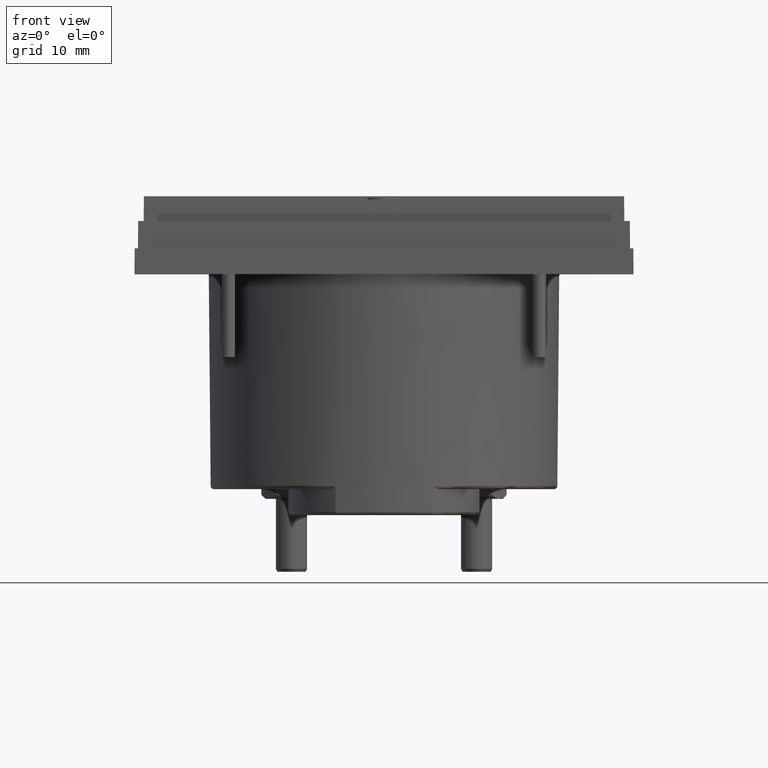
[diagram: clean part render]
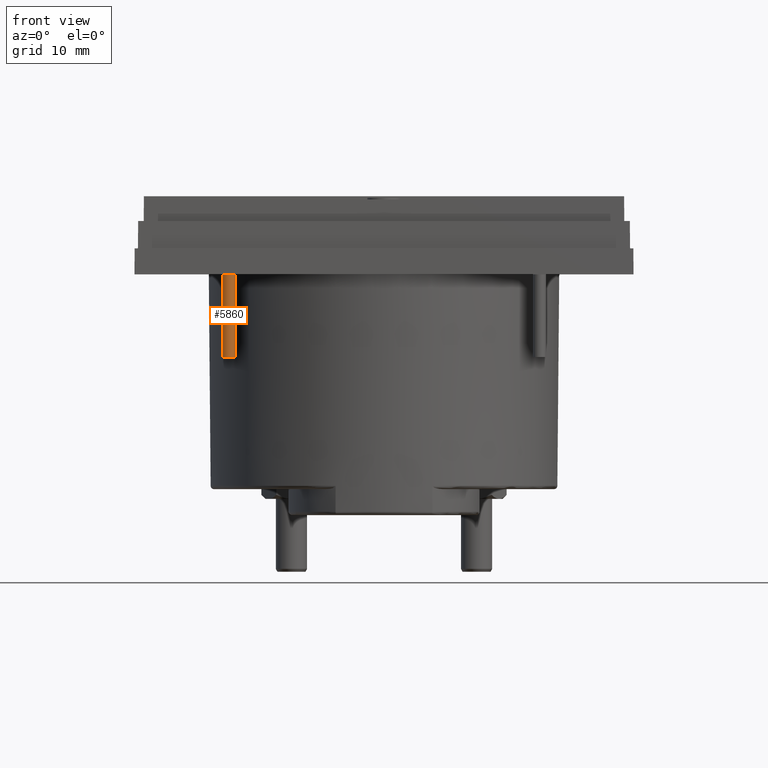
[diagram: same view with one face highlighted and labeled with its STEP entity id]
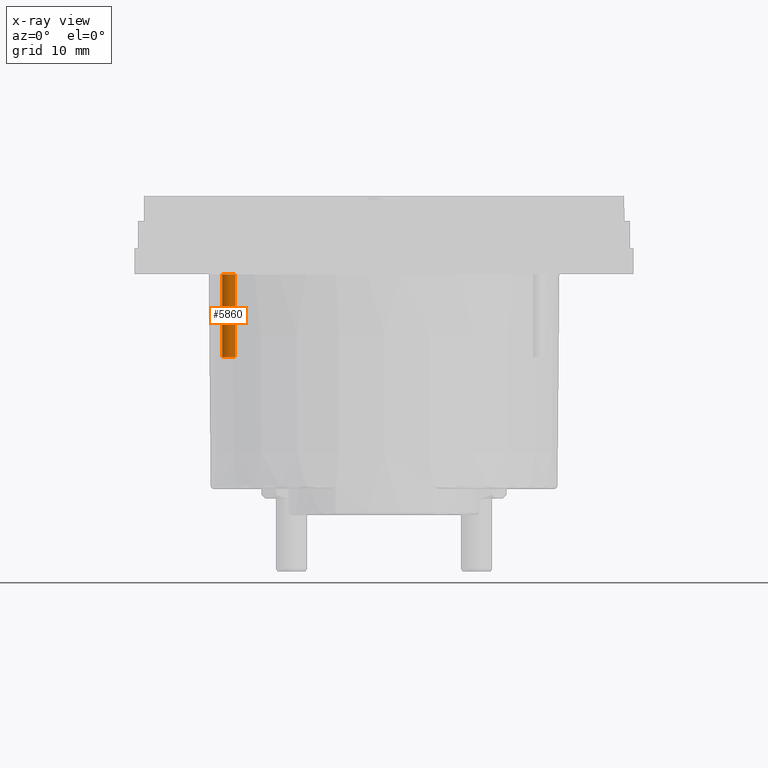
[diagram: x-ray of the same camera — body ghosted, the highlighted face saturated]
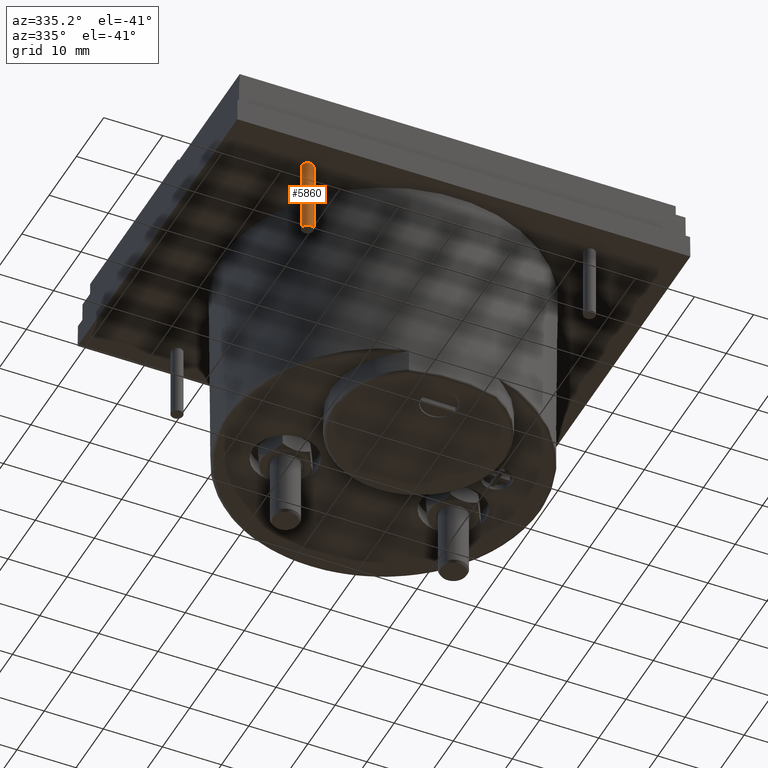
[diagram: same view with one face highlighted and labeled with its STEP entity id]
A machine part, front view. The second image highlights one B-rep face of the part: STEP entity #5860.
The next image is the same camera in x-ray: the body ghosted, the highlighted face saturated — about 0% of this face is hidden behind the body in this view.
A second angle (auxiliary view) of the same face is appended — the face is thin or edge-on in the first view.
In plain terms, the highlighted cylindrical surface (edge-blend (fillet) strip) has radius 1 mm, axis along (0, 0, -1).
Its self-contained STEP definition (entity closure, byte-faithful):
#148 = CARTESIAN_POINT ( 'NONE',  ( -0.9400000000000000577, -0.1240944881889748247, -0.2732283464566929720 ) ) ;
#357 = EDGE_CURVE ( 'NONE', #1297, #4642, #4950, .T. ) ;
#513 = VERTEX_POINT ( 'NONE', #2764 ) ;
#711 = AXIS2_PLACEMENT_3D ( 'NONE', #3339, #955, #4629 ) ;
#790 = ORIENTED_EDGE ( 'NONE', *, *, #357, .T. ) ;
#798 = DIRECTION ( 'NONE',  ( -1.000000000000000000, 0.000000000000000000, 0.000000000000000000 ) ) ;
#902 = EDGE_CURVE ( 'NONE', #513, #4642, #1481, .T. ) ;
#955 = DIRECTION ( 'NONE',  ( -0.000000000000000000, -0.000000000000000000, 1.000000000000000000 ) ) ;
#1150 = ORIENTED_EDGE ( 'NONE', *, *, #1502, .F. ) ;
#1297 = VERTEX_POINT ( 'NONE', #3282 ) ;
#1345 = AXIS2_PLACEMENT_3D ( 'NONE', #148, #4768, #2001 ) ;
#1399 = VECTOR ( 'NONE', #3318, 39.37007874015748143 ) ;
#1438 = CARTESIAN_POINT ( 'NONE',  ( -0.9793700787401575791, -0.1240944881889748247, -0.2732283464566929720 ) ) ;
#1481 = LINE ( 'NONE', #3406, #1399 ) ;
#1502 = EDGE_CURVE ( 'NONE', #2990, #513, #3143, .T. ) ;
#1912 = CYLINDRICAL_SURFACE ( 'NONE', #1345, 0.03937007874015751446 ) ;
#2001 = DIRECTION ( 'NONE',  ( -1.000000000000000000, 0.000000000000000000, 0.000000000000000000 ) ) ;
#2387 = VECTOR ( 'NONE', #4623, 39.37007874015748143 ) ;
#2649 = DIRECTION ( 'NONE',  ( -0.000000000000000000, -0.000000000000000000, 1.000000000000000000 ) ) ;
#2738 = CARTESIAN_POINT ( 'NONE',  ( -0.9400000000000000577, -0.1240944881889748247, -0.2732283464566929720 ) ) ;
#2764 = CARTESIAN_POINT ( 'NONE',  ( -0.9006299212598425363, -0.1240944881889748247, -0.2732283464566929720 ) ) ;
#2990 = VERTEX_POINT ( 'NONE', #5079 ) ;
#3143 = CIRCLE ( 'NONE', #5946, 0.03937007874015751446 ) ;
#3282 = CARTESIAN_POINT ( 'NONE',  ( -0.9793700787401575791, -0.1240944881889748247, -0.7732283464566930276 ) ) ;
#3318 = DIRECTION ( 'NONE',  ( 0.000000000000000000, 0.000000000000000000, -1.000000000000000000 ) ) ;
#3327 = FACE_OUTER_BOUND ( 'NONE', #5104, .T. ) ;
#3339 = CARTESIAN_POINT ( 'NONE',  ( -0.9400000000000000577, -0.1240944881889748247, -0.7732283464566930276 ) ) ;
#3406 = CARTESIAN_POINT ( 'NONE',  ( -0.9006299212598425363, -0.1240944881889748247, -0.2732283464566929720 ) ) ;
#3887 = EDGE_CURVE ( 'NONE', #2990, #1297, #4595, .T. ) ;
#4209 = ORIENTED_EDGE ( 'NONE', *, *, #902, .F. ) ;
#4595 = LINE ( 'NONE', #1438, #2387 ) ;
#4623 = DIRECTION ( 'NONE',  ( 0.000000000000000000, 0.000000000000000000, -1.000000000000000000 ) ) ;
#4629 = DIRECTION ( 'NONE',  ( -1.000000000000000000, 0.000000000000000000, 0.000000000000000000 ) ) ;
#4642 = VERTEX_POINT ( 'NONE', #5411 ) ;
#4768 = DIRECTION ( 'NONE',  ( 0.000000000000000000, 0.000000000000000000, -1.000000000000000000 ) ) ;
#4950 = CIRCLE ( 'NONE', #711, 0.03937007874015751446 ) ;
#5079 = CARTESIAN_POINT ( 'NONE',  ( -0.9793700787401575791, -0.1240944881889748247, -0.2732283464566929720 ) ) ;
#5104 = EDGE_LOOP ( 'NONE', ( #4209, #1150, #5359, #790 ) ) ;
#5359 = ORIENTED_EDGE ( 'NONE', *, *, #3887, .T. ) ;
#5411 = CARTESIAN_POINT ( 'NONE',  ( -0.9006299212598425363, -0.1240944881889748247, -0.7732283464566930276 ) ) ;
#5860 = ADVANCED_FACE ( 'NONE', ( #3327 ), #1912, .T. ) ;
#5946 = AXIS2_PLACEMENT_3D ( 'NONE', #2738, #2649, #798 ) ;